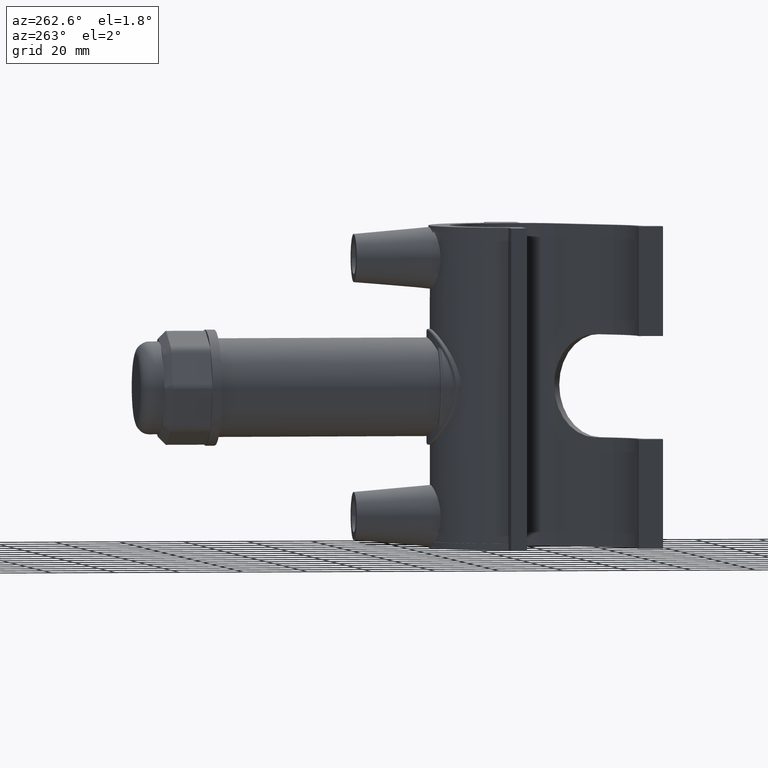
[diagram: clean part render]
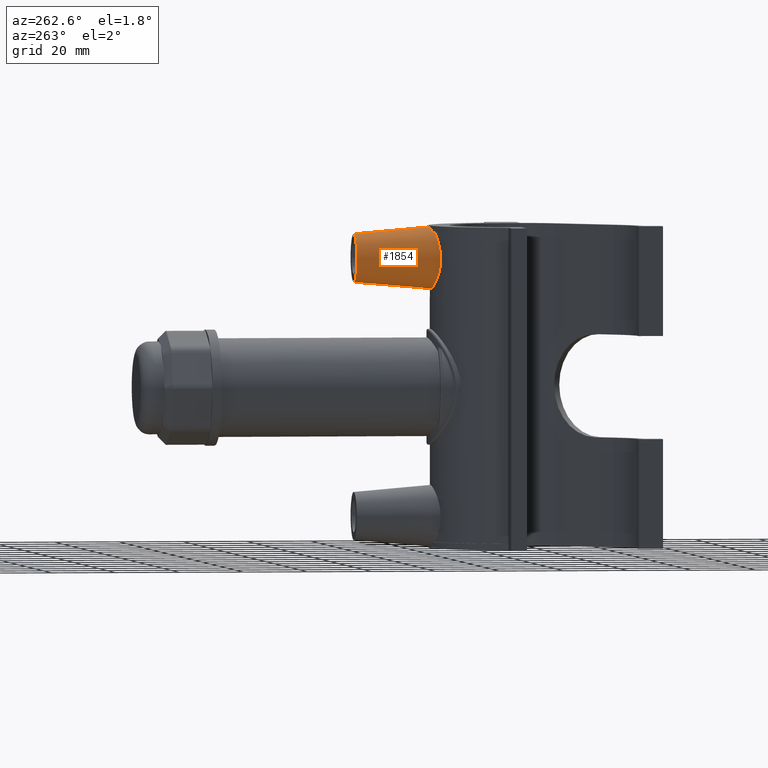
[diagram: same view with one face highlighted and labeled with its STEP entity id]
A machine part, auxiliary view. The second image highlights one B-rep face of the part: STEP entity #1854.
In plain terms, the highlighted conical surface has half-angle 5 deg.
Its self-contained STEP definition (entity closure, byte-faithful):
#27=(
BOUNDED_CURVE()
B_SPLINE_CURVE(2,(#2851,#2852,#2853),.UNSPECIFIED.,.F.,.F.)
B_SPLINE_CURVE_WITH_KNOTS((3,3),(0.133736892367414,0.189943766145763),
 .UNSPECIFIED.)
CURVE()
GEOMETRIC_REPRESENTATION_ITEM()
RATIONAL_B_SPLINE_CURVE((1.00009556013023,1.00009167201305,1.00006763645424))
REPRESENTATION_ITEM('')
);
#28=(
BOUNDED_CURVE()
B_SPLINE_CURVE(2,(#2866,#2867,#2868),.UNSPECIFIED.,.F.,.F.)
B_SPLINE_CURVE_WITH_KNOTS((3,3),(0.0558360570482737,0.112042930826622),
 .UNSPECIFIED.)
CURVE()
GEOMETRIC_REPRESENTATION_ITEM()
RATIONAL_B_SPLINE_CURVE((1.00006763645424,1.00009167201305,1.00009556013023))
REPRESENTATION_ITEM('')
);
#31=CONICAL_SURFACE('',#1986,7.5,5.);
#53=FACE_BOUND('',#354,.T.);
#68=B_SPLINE_CURVE_WITH_KNOTS('',3,(#2855,#2856,#2857,#2858,#2859,#2860,
#2861,#2862,#2863,#2864),.UNSPECIFIED.,.F.,.F.,(4,2,2,2,4),(3.86154772595049,
4.03463958852525,4.40043196614832,4.76622434377139,4.93931620634615),
 .UNSPECIFIED.);
#69=B_SPLINE_CURVE_WITH_KNOTS('',3,(#2870,#2871,#2872,#2873,#2874,#2875,
#2876,#2877),.UNSPECIFIED.,.F.,.F.,(4,2,2,4),(2.94996046614777,3.31966211596086,
3.68936376577394,3.87630209367673),.UNSPECIFIED.);
#70=B_SPLINE_CURVE_WITH_KNOTS('',3,(#2878,#2879,#2880,#2881,#2882,#2883,
#2884,#2885,#2886,#2887,#2888,#2889,#2890,#2891,#2892,#2893,#2894,#2895,
#2896,#2897,#2898,#2899,#2900,#2901,#2902),.UNSPECIFIED.,.F.,.F.,(4,2,2,
3,2,2,2,2,2,2,2,4),(4.97357930476659,5.16051763266937,5.53021928248246,
5.89992093229554,6.26962258210863,6.63932423192171,7.00711269864557,7.37490116536943,
7.74268963209329,8.11047809881715,8.48017974863023,8.84988139844332),
 .UNSPECIFIED.);
#106=CIRCLE('',#1977,7.5);
#229=FACE_OUTER_BOUND('',#353,.T.);
#353=EDGE_LOOP('',(#1276,#1277,#1278,#1279,#1280));
#354=EDGE_LOOP('',(#1281));
#785=VERTEX_POINT('',#2834);
#790=VERTEX_POINT('',#2849);
#791=VERTEX_POINT('',#2850);
#792=VERTEX_POINT('',#2854);
#793=VERTEX_POINT('',#2865);
#794=VERTEX_POINT('',#2869);
#975=EDGE_CURVE('',#785,#785,#106,.T.);
#980=EDGE_CURVE('',#790,#791,#27,.T.);
#981=EDGE_CURVE('',#791,#792,#68,.T.);
#982=EDGE_CURVE('',#792,#793,#28,.T.);
#983=EDGE_CURVE('',#794,#793,#69,.T.);
#984=EDGE_CURVE('',#790,#794,#70,.T.);
#1276=ORIENTED_EDGE('',*,*,#980,.T.);
#1277=ORIENTED_EDGE('',*,*,#981,.T.);
#1278=ORIENTED_EDGE('',*,*,#982,.T.);
#1279=ORIENTED_EDGE('',*,*,#983,.F.);
#1280=ORIENTED_EDGE('',*,*,#984,.F.);
#1281=ORIENTED_EDGE('',*,*,#975,.F.);
#1854=ADVANCED_FACE('',(#229,#53),#31,.T.);
#1977=AXIS2_PLACEMENT_3D('',#2835,#2224,#2225);
#1986=AXIS2_PLACEMENT_3D('',#2848,#2242,#2243);
#2224=DIRECTION('center_axis',(0.,1.,0.));
#2225=DIRECTION('ref_axis',(1.,0.,0.));
#2242=DIRECTION('center_axis',(0.,-1.,0.));
#2243=DIRECTION('ref_axis',(1.,0.,0.));
#2834=CARTESIAN_POINT('',(-7.5,50.,40.));
#2835=CARTESIAN_POINT('Origin',(0.,50.,40.));
#2848=CARTESIAN_POINT('Origin',(0.,50.,40.));
#2849=CARTESIAN_POINT('',(-5.3951674336109,25.4340749460896,48.));
#2850=CARTESIAN_POINT('',(-5.30876387516254,25.9832143145872,48.));
#2851=CARTESIAN_POINT('Ctrl Pts',(-5.3951674336109,25.4340749460896,48.));
#2852=CARTESIAN_POINT('Ctrl Pts',(-5.3518578353578,25.7108609933817,48.));
#2853=CARTESIAN_POINT('Ctrl Pts',(-5.30876387516254,25.9832143145872,48.));
#2854=CARTESIAN_POINT('',(5.30876387516254,25.9832143145872,48.));
#2855=CARTESIAN_POINT('Ctrl Pts',(-5.30876387516254,25.9832143145872,48.));
#2856=CARTESIAN_POINT('Ctrl Pts',(-4.80614466395267,26.0859070253168,48.3227531575944));
#2857=CARTESIAN_POINT('Ctrl Pts',(-4.26604609183942,26.1807941840248,48.6035301130302));
#2858=CARTESIAN_POINT('Ctrl Pts',(-2.51473217360753,26.427785365591,49.3144846289839));
#2859=CARTESIAN_POINT('Ctrl Pts',(-1.21930792541024,26.52,49.5542338195887));
#2860=CARTESIAN_POINT('Ctrl Pts',(1.21930792541023,26.52,49.5542338195887));
#2861=CARTESIAN_POINT('Ctrl Pts',(2.51473217360752,26.427785365591,49.3144846289839));
#2862=CARTESIAN_POINT('Ctrl Pts',(4.26604609183941,26.1807941840248,48.6035301130302));
#2863=CARTESIAN_POINT('Ctrl Pts',(4.80614466395267,26.0859070253168,48.3227531575944));
#2864=CARTESIAN_POINT('Ctrl Pts',(5.30876387516253,25.9832143145872,48.));
#2865=CARTESIAN_POINT('',(5.3951674336109,25.4340749460896,48.));
#2866=CARTESIAN_POINT('Ctrl Pts',(5.30876387516254,25.9832143145872,48.));
#2867=CARTESIAN_POINT('Ctrl Pts',(5.35185783535865,25.7108609933762,48.));
#2868=CARTESIAN_POINT('Ctrl Pts',(5.3951674336109,25.4340749460896,48.));
#2869=CARTESIAN_POINT('',(9.76630249195255,24.096043983104,40.));
#2870=CARTESIAN_POINT('Ctrl Pts',(9.76630249195255,24.096043983104,40.));
#2871=CARTESIAN_POINT('Ctrl Pts',(9.76630249195255,24.096043983104,41.2323388327103));
#2872=CARTESIAN_POINT('Ctrl Pts',(9.50996216014971,24.2044189053942,42.5340450094426));
#2873=CARTESIAN_POINT('Ctrl Pts',(8.49387395753575,24.5794092044208,44.9067073127729));
#2874=CARTESIAN_POINT('Ctrl Pts',(7.73484343137409,24.8390807172828,45.9790627512517));
#2875=CARTESIAN_POINT('Ctrl Pts',(6.42972331783999,25.1965310724773,47.2485693515817));
#2876=CARTESIAN_POINT('Ctrl Pts',(5.93451184178679,25.3196672708485,47.6483411838531));
#2877=CARTESIAN_POINT('Ctrl Pts',(5.3951674336109,25.4340749460896,48.));
#2878=CARTESIAN_POINT('Ctrl Pts',(-5.3951674336109,25.4340749460896,48.));
#2879=CARTESIAN_POINT('Ctrl Pts',(-5.93451184178679,25.3196672708485,47.6483411838531));
#2880=CARTESIAN_POINT('Ctrl Pts',(-6.42972331783999,25.1965310724773,47.2485693515817));
#2881=CARTESIAN_POINT('Ctrl Pts',(-7.73484343137409,24.8390807172828,45.9790627512517));
#2882=CARTESIAN_POINT('Ctrl Pts',(-8.49387395753575,24.5794092044208,44.9067073127729));
#2883=CARTESIAN_POINT('Ctrl Pts',(-9.50996216014971,24.2044189053942,42.5340450094426));
#2884=CARTESIAN_POINT('Ctrl Pts',(-9.76630249195255,24.096043983104,41.2323388327103));
#2885=CARTESIAN_POINT('Ctrl Pts',(-9.76630249195255,24.096043983104,40.));
#2886=CARTESIAN_POINT('Ctrl Pts',(-9.76630249195255,24.096043983104,38.7676611672897));
#2887=CARTESIAN_POINT('Ctrl Pts',(-9.50996216014971,24.2044189053943,37.4659549905574));
#2888=CARTESIAN_POINT('Ctrl Pts',(-8.49387395753574,24.5794092044208,35.0932926872271));
#2889=CARTESIAN_POINT('Ctrl Pts',(-7.73484343137409,24.8390807172828,34.0209372487483));
#2890=CARTESIAN_POINT('Ctrl Pts',(-6.00569492756996,25.3126652865951,32.3389729484772));
#2891=CARTESIAN_POINT('Ctrl Pts',(-4.91758131382388,25.5592379122145,31.6109466468528));
#2892=CARTESIAN_POINT('Ctrl Pts',(-2.528128502029,25.9049380292898,30.6412987795354));
#2893=CARTESIAN_POINT('Ctrl Pts',(-1.22596155574619,26.,30.4002720753778));
#2894=CARTESIAN_POINT('Ctrl Pts',(1.22596155574619,26.,30.4002720753778));
#2895=CARTESIAN_POINT('Ctrl Pts',(2.528128502029,25.9049380292898,30.6412987795354));
#2896=CARTESIAN_POINT('Ctrl Pts',(4.91758131382388,25.5592379122145,31.6109466468528));
#2897=CARTESIAN_POINT('Ctrl Pts',(6.00569492756995,25.3126652865951,32.3389729484772));
#2898=CARTESIAN_POINT('Ctrl Pts',(7.73484343137408,24.8390807172828,34.0209372487483));
#2899=CARTESIAN_POINT('Ctrl Pts',(8.49387395753574,24.5794092044208,35.0932926872271));
#2900=CARTESIAN_POINT('Ctrl Pts',(9.50996216014971,24.2044189053942,37.4659549905574));
#2901=CARTESIAN_POINT('Ctrl Pts',(9.76630249195255,24.096043983104,38.7676611672897));
#2902=CARTESIAN_POINT('Ctrl Pts',(9.76630249195255,24.096043983104,40.));